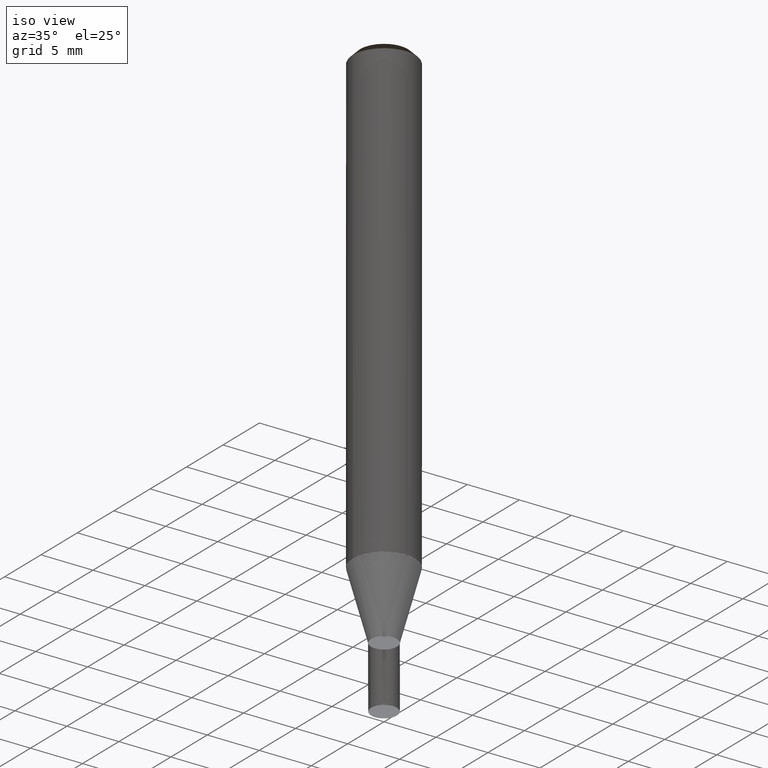
[diagram: clean part render]
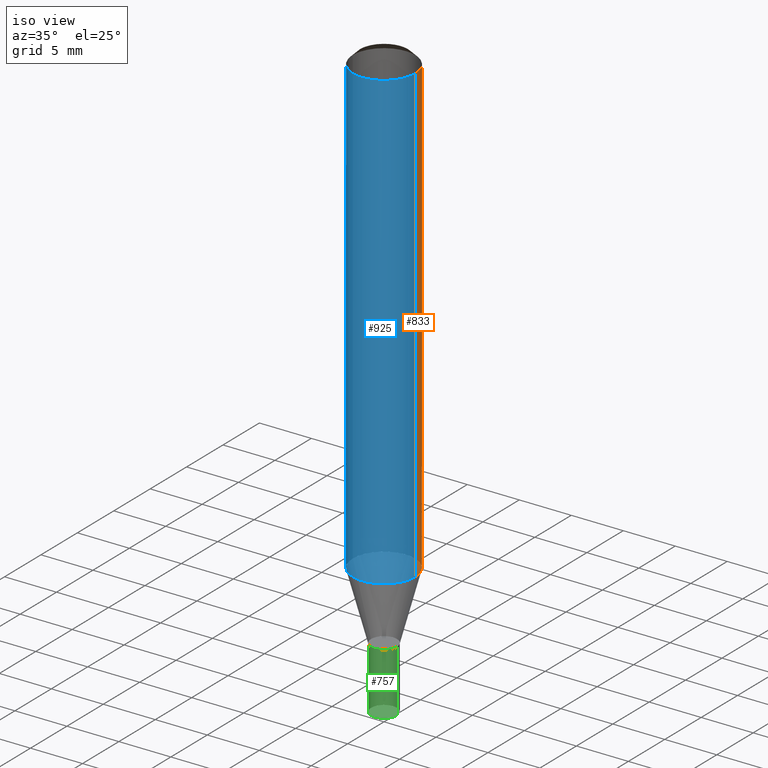
[diagram: same view with three faces highlighted in distinct colors, each labeled with its STEP entity id]
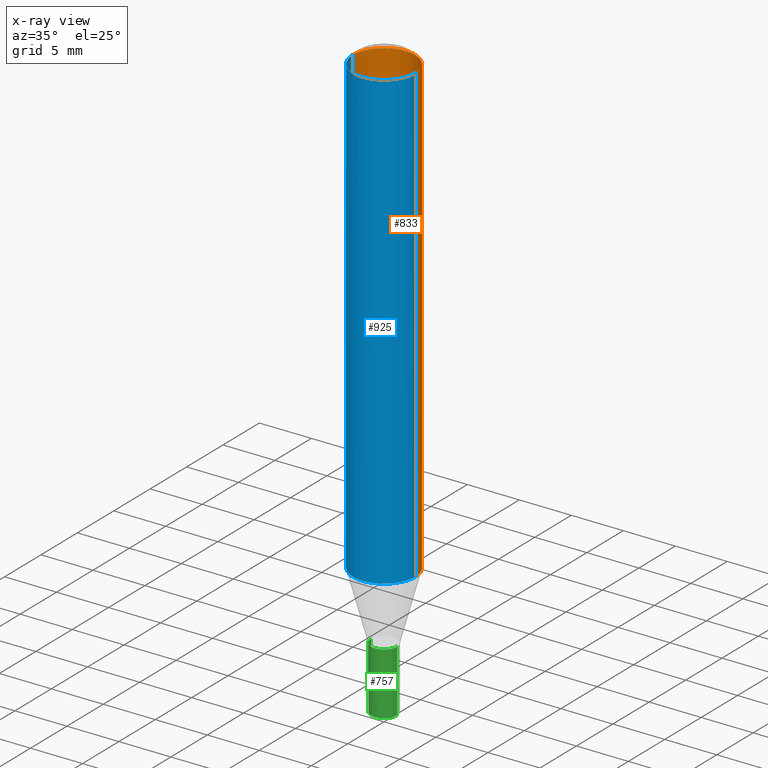
[diagram: x-ray of the same camera — body ghosted, the three highlighted faces saturated]
A machine part, iso view with three faces highlighted in distinct colors.
The next image is the same camera in x-ray (body ghosted, the three faces saturated) — at least one of them is partly hidden behind the body in this view.
Their STEP definitions:

[orange] entity #833 — the highlighted face is a freeform B-spline surface patch.
#598=CARTESIAN_POINT('',(3.0,0.0,0.0));
#599=CARTESIAN_POINT('',(3.0,3.0,0.0));
#600=CARTESIAN_POINT('',(0.0,3.0,0.0));
#601=CARTESIAN_POINT('',(-3.0,3.0,0.0));
#602=CARTESIAN_POINT('',(-3.0,0.0,0.0));
#603=CARTESIAN_POINT('',(3.0,0.0,43.768930771));
#604=CARTESIAN_POINT('',(3.0,3.0,43.768930771));
#605=CARTESIAN_POINT('',(0.0,3.0,43.768930771));
#606=CARTESIAN_POINT('',(-3.0,3.0,43.768930771));
#607=CARTESIAN_POINT('',(-3.0,0.0,43.768930771));
#814=(
BOUNDED_SURFACE()
B_SPLINE_SURFACE(1,2,(
(#598,#599,#600,#601,#602),
(#603,#604,#605,#606,#607)
), .UNSPECIFIED.,.F.,.F.,.F.)
B_SPLINE_SURFACE_WITH_KNOTS((2,2),(3,2,3),(
0.0,1.0),(
0.0,0.5,1.0), .UNSPECIFIED.)
GEOMETRIC_REPRESENTATION_ITEM()
RATIONAL_B_SPLINE_SURFACE(((1.0,0.707106781187,1.0,0.707106781187,1.0),
(1.0,0.707106781187,1.0,0.707106781187,1.0)
))
REPRESENTATION_ITEM('')
SURFACE()
);
#815=(
BOUNDED_CURVE()
B_SPLINE_CURVE(2,(#603,#604,#605,#606,#607),.UNSPECIFIED.,.F.,.F.)
B_SPLINE_CURVE_WITH_KNOTS((3,2,3),
(0.0,0.5,1.0),.UNSPECIFIED.)
CURVE()
GEOMETRIC_REPRESENTATION_ITEM()
RATIONAL_B_SPLINE_CURVE((1.0,0.707106781187,1.0,0.707106781187,1.0))
REPRESENTATION_ITEM('')
);
#816=(
BOUNDED_CURVE()
B_SPLINE_CURVE(1,(#607,#602),.UNSPECIFIED.,.F.,.F.)
B_SPLINE_CURVE_WITH_KNOTS((2,2),
(0.0,1.0),.UNSPECIFIED.)
CURVE()
GEOMETRIC_REPRESENTATION_ITEM()
RATIONAL_B_SPLINE_CURVE((1.0,1.0))
REPRESENTATION_ITEM('')
);
#817=(
BOUNDED_CURVE()
B_SPLINE_CURVE(2,(#602,#601,#600,#599,#598),.UNSPECIFIED.,.F.,.F.)
B_SPLINE_CURVE_WITH_KNOTS((3,2,3),
(0.0,0.5,1.0),.UNSPECIFIED.)
CURVE()
GEOMETRIC_REPRESENTATION_ITEM()
RATIONAL_B_SPLINE_CURVE((1.0,0.707106781187,1.0,0.707106781187,1.0))
REPRESENTATION_ITEM('')
);
#818=(
BOUNDED_CURVE()
B_SPLINE_CURVE(1,(#598,#603),.UNSPECIFIED.,.F.,.F.)
B_SPLINE_CURVE_WITH_KNOTS((2,2),
(0.0,1.0),.UNSPECIFIED.)
CURVE()
GEOMETRIC_REPRESENTATION_ITEM()
RATIONAL_B_SPLINE_CURVE((1.0,1.0))
REPRESENTATION_ITEM('')
);
#819=VERTEX_POINT('',#598);
#820=VERTEX_POINT('',#602);
#821=VERTEX_POINT('',#603);
#822=VERTEX_POINT('',#607);
#823=EDGE_CURVE('',#821,#822,#815,.T.);
#824=EDGE_CURVE('',#822,#820,#816,.T.);
#825=EDGE_CURVE('',#820,#819,#817,.T.);
#826=EDGE_CURVE('',#819,#821,#818,.T.);
#827=ORIENTED_EDGE('',*,*,#823,.T.);
#828=ORIENTED_EDGE('',*,*,#824,.T.);
#829=ORIENTED_EDGE('',*,*,#825,.T.);
#830=ORIENTED_EDGE('',*,*,#826,.T.);
#831=EDGE_LOOP('',(#827,#828,#829,#830));
#832=FACE_OUTER_BOUND('',#831,.T.);
#833=ADVANCED_FACE('',(#832),#814,.T.);

[blue] entity #925 — the highlighted face is a freeform B-spline surface patch.
#598=CARTESIAN_POINT('',(3.0,0.0,0.0));
#602=CARTESIAN_POINT('',(-3.0,0.0,0.0));
#603=CARTESIAN_POINT('',(3.0,0.0,43.768930771));
#607=CARTESIAN_POINT('',(-3.0,0.0,43.768930771));
#614=CARTESIAN_POINT('',(-3.0,-3.0,0.0));
#615=CARTESIAN_POINT('',(0.0,-3.0,0.0));
#616=CARTESIAN_POINT('',(3.0,-3.0,0.0));
#617=CARTESIAN_POINT('',(-3.0,-3.0,43.768930771));
#618=CARTESIAN_POINT('',(0.0,-3.0,43.768930771));
#619=CARTESIAN_POINT('',(3.0,-3.0,43.768930771));
#906=(
BOUNDED_SURFACE()
B_SPLINE_SURFACE(1,2,(
(#602,#614,#615,#616,#598),
(#607,#617,#618,#619,#603)
), .UNSPECIFIED.,.F.,.F.,.F.)
B_SPLINE_SURFACE_WITH_KNOTS((2,2),(3,2,3),(
0.0,1.0),(
0.0,0.5,1.0), .UNSPECIFIED.)
GEOMETRIC_REPRESENTATION_ITEM()
RATIONAL_B_SPLINE_SURFACE(((1.0,0.707106781187,1.0,0.707106781187,1.0),
(1.0,0.707106781187,1.0,0.707106781187,1.0)
))
REPRESENTATION_ITEM('')
SURFACE()
);
#907=(
BOUNDED_CURVE()
B_SPLINE_CURVE(1,(#607,#602),.UNSPECIFIED.,.F.,.F.)
B_SPLINE_CURVE_WITH_KNOTS((2,2),
(0.0,1.0),.UNSPECIFIED.)
CURVE()
GEOMETRIC_REPRESENTATION_ITEM()
RATIONAL_B_SPLINE_CURVE((1.0,1.0))
REPRESENTATION_ITEM('')
);
#908=(
BOUNDED_CURVE()
B_SPLINE_CURVE(2,(#602,#614,#615,#616,#598),.UNSPECIFIED.,.F.,.F.)
B_SPLINE_CURVE_WITH_KNOTS((3,2,3),
(0.0,0.5,1.0),.UNSPECIFIED.)
CURVE()
GEOMETRIC_REPRESENTATION_ITEM()
RATIONAL_B_SPLINE_CURVE((1.0,0.707106781187,1.0,0.707106781187,1.0))
REPRESENTATION_ITEM('')
);
#909=(
BOUNDED_CURVE()
B_SPLINE_CURVE(1,(#598,#603),.UNSPECIFIED.,.F.,.F.)
B_SPLINE_CURVE_WITH_KNOTS((2,2),
(0.0,1.0),.UNSPECIFIED.)
CURVE()
GEOMETRIC_REPRESENTATION_ITEM()
RATIONAL_B_SPLINE_CURVE((1.0,1.0))
REPRESENTATION_ITEM('')
);
#910=(
BOUNDED_CURVE()
B_SPLINE_CURVE(2,(#603,#619,#618,#617,#607),.UNSPECIFIED.,.F.,.F.)
B_SPLINE_CURVE_WITH_KNOTS((3,2,3),
(0.0,0.5,1.0),.UNSPECIFIED.)
CURVE()
GEOMETRIC_REPRESENTATION_ITEM()
RATIONAL_B_SPLINE_CURVE((1.0,0.707106781187,1.0,0.707106781187,1.0))
REPRESENTATION_ITEM('')
);
#911=VERTEX_POINT('',#598);
#912=VERTEX_POINT('',#602);
#913=VERTEX_POINT('',#603);
#914=VERTEX_POINT('',#607);
#915=EDGE_CURVE('',#914,#912,#907,.T.);
#916=EDGE_CURVE('',#912,#911,#908,.T.);
#917=EDGE_CURVE('',#911,#913,#909,.T.);
#918=EDGE_CURVE('',#913,#914,#910,.T.);
#919=ORIENTED_EDGE('',*,*,#915,.T.);
#920=ORIENTED_EDGE('',*,*,#916,.T.);
#921=ORIENTED_EDGE('',*,*,#917,.T.);
#922=ORIENTED_EDGE('',*,*,#918,.T.);
#923=EDGE_LOOP('',(#919,#920,#921,#922));
#924=FACE_OUTER_BOUND('',#923,.T.);
#925=ADVANCED_FACE('',(#924),#906,.T.);

[green] entity #757 — the highlighted face is a freeform B-spline surface patch.
#578=CARTESIAN_POINT('',(1.25,0.0,-12.511069229));
#582=CARTESIAN_POINT('',(-1.25,0.0,-12.511069229));
#583=CARTESIAN_POINT('',(1.25,0.0,-6.531069229));
#587=CARTESIAN_POINT('',(-1.25,0.0,-6.531069229));
#592=CARTESIAN_POINT('',(-1.25,-1.25,-12.511069229));
#593=CARTESIAN_POINT('',(0.0,-1.25,-12.511069229));
#594=CARTESIAN_POINT('',(1.25,-1.25,-12.511069229));
#595=CARTESIAN_POINT('',(-1.25,-1.25,-6.531069229));
#596=CARTESIAN_POINT('',(0.0,-1.25,-6.531069229));
#597=CARTESIAN_POINT('',(1.25,-1.25,-6.531069229));
#738=(
BOUNDED_SURFACE()
B_SPLINE_SURFACE(1,2,(
(#582,#592,#593,#594,#578),
(#587,#595,#596,#597,#583)
), .UNSPECIFIED.,.F.,.F.,.F.)
B_SPLINE_SURFACE_WITH_KNOTS((2,2),(3,2,3),(
0.0,1.0),(
0.0,0.5,1.0), .UNSPECIFIED.)
GEOMETRIC_REPRESENTATION_ITEM()
RATIONAL_B_SPLINE_SURFACE(((1.0,0.707106781187,1.0,0.707106781187,1.0),
(1.0,0.707106781187,1.0,0.707106781187,1.0)
))
REPRESENTATION_ITEM('')
SURFACE()
);
#739=(
BOUNDED_CURVE()
B_SPLINE_CURVE(1,(#587,#582),.UNSPECIFIED.,.F.,.F.)
B_SPLINE_CURVE_WITH_KNOTS((2,2),
(0.0,1.0),.UNSPECIFIED.)
CURVE()
GEOMETRIC_REPRESENTATION_ITEM()
RATIONAL_B_SPLINE_CURVE((1.0,1.0))
REPRESENTATION_ITEM('')
);
#740=(
BOUNDED_CURVE()
B_SPLINE_CURVE(2,(#582,#592,#593,#594,#578),.UNSPECIFIED.,.F.,.F.)
B_SPLINE_CURVE_WITH_KNOTS((3,2,3),
(0.0,0.5,1.0),.UNSPECIFIED.)
CURVE()
GEOMETRIC_REPRESENTATION_ITEM()
RATIONAL_B_SPLINE_CURVE((1.0,0.707106781187,1.0,0.707106781187,1.0))
REPRESENTATION_ITEM('')
);
#741=(
BOUNDED_CURVE()
B_SPLINE_CURVE(1,(#578,#583),.UNSPECIFIED.,.F.,.F.)
B_SPLINE_CURVE_WITH_KNOTS((2,2),
(0.0,1.0),.UNSPECIFIED.)
CURVE()
GEOMETRIC_REPRESENTATION_ITEM()
RATIONAL_B_SPLINE_CURVE((1.0,1.0))
REPRESENTATION_ITEM('')
);
#742=(
BOUNDED_CURVE()
B_SPLINE_CURVE(2,(#583,#597,#596,#595,#587),.UNSPECIFIED.,.F.,.F.)
B_SPLINE_CURVE_WITH_KNOTS((3,2,3),
(0.0,0.5,1.0),.UNSPECIFIED.)
CURVE()
GEOMETRIC_REPRESENTATION_ITEM()
RATIONAL_B_SPLINE_CURVE((1.0,0.707106781187,1.0,0.707106781187,1.0))
REPRESENTATION_ITEM('')
);
#743=VERTEX_POINT('',#578);
#744=VERTEX_POINT('',#582);
#745=VERTEX_POINT('',#583);
#746=VERTEX_POINT('',#587);
#747=EDGE_CURVE('',#746,#744,#739,.T.);
#748=EDGE_CURVE('',#744,#743,#740,.T.);
#749=EDGE_CURVE('',#743,#745,#741,.T.);
#750=EDGE_CURVE('',#745,#746,#742,.T.);
#751=ORIENTED_EDGE('',*,*,#747,.T.);
#752=ORIENTED_EDGE('',*,*,#748,.T.);
#753=ORIENTED_EDGE('',*,*,#749,.T.);
#754=ORIENTED_EDGE('',*,*,#750,.T.);
#755=EDGE_LOOP('',(#751,#752,#753,#754));
#756=FACE_OUTER_BOUND('',#755,.T.);
#757=ADVANCED_FACE('',(#756),#738,.T.);